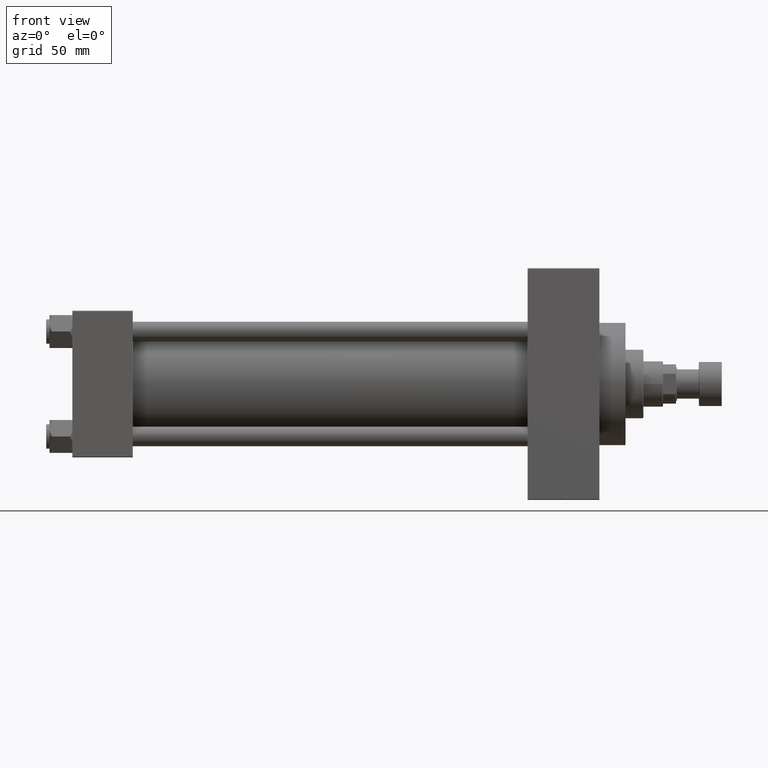
[diagram: clean part render]
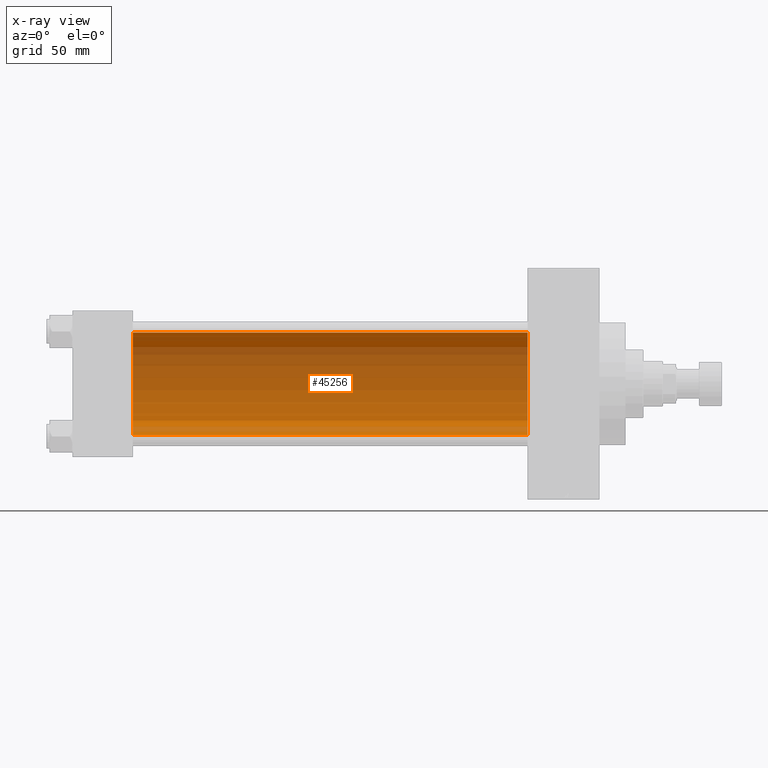
[diagram: x-ray — body ghosted, one internal face saturated and labeled with its STEP entity id]
A machine part, front view, then the same camera in x-ray: the body is ghosted and one INTERNAL B-rep face — a face not visible from any outside direction — is saturated and labeled: STEP entity #45256.
In plain terms, the highlighted cylindrical surface (partial cylindrical patch) has radius 31.5 mm, axis along (-1, -0, -0).
Its self-contained STEP definition (entity closure, byte-faithful):
#223 = ORIENTED_EDGE ( 'NONE', *, *, #43211, .F. ) ;
#313 = VECTOR ( 'NONE', #17520, 1000.000000000000000 ) ;
#2529 = DIRECTION ( 'NONE',  ( 1.000000000000000000, 0.000000000000000000, 0.000000000000000000 ) ) ;
#3727 = ORIENTED_EDGE ( 'NONE', *, *, #17386, .F. ) ;
#4605 = CIRCLE ( 'NONE', #29481, 31.50000000000000000 ) ;
#4612 = DIRECTION ( 'NONE',  ( 0.000000000000000000, 0.000000000000000000, -1.000000000000000000 ) ) ;
#6145 = DIRECTION ( 'NONE',  ( -1.000000000000000000, -0.000000000000000000, -0.000000000000000000 ) ) ;
#9125 = CYLINDRICAL_SURFACE ( 'NONE', #12358, 31.50000000000000000 ) ;
#9978 = CARTESIAN_POINT ( 'NONE',  ( 278.9999999999999432, 1.255552203348951850E-15, -31.50000000000000000 ) ) ;
#12358 = AXIS2_PLACEMENT_3D ( 'NONE', #21171, #36535, #44338 ) ;
#13759 = LINE ( 'NONE', #28629, #313 ) ;
#15165 = CARTESIAN_POINT ( 'NONE',  ( 37.00000000000000000, 1.255552203348951850E-15, -31.50000000000000000 ) ) ;
#15628 = EDGE_CURVE ( 'NONE', #17822, #39774, #27033, .T. ) ;
#17009 = ORIENTED_EDGE ( 'NONE', *, *, #15628, .T. ) ;
#17386 = EDGE_CURVE ( 'NONE', #21214, #35233, #4605, .T. ) ;
#17520 = DIRECTION ( 'NONE',  ( -1.000000000000000000, -0.000000000000000000, -0.000000000000000000 ) ) ;
#17822 = VERTEX_POINT ( 'NONE', #9978 ) ;
#18141 = CARTESIAN_POINT ( 'NONE',  ( 278.9999999999999432, -2.602085213965210642E-15, 31.50000000000000000 ) ) ;
#21097 = VECTOR ( 'NONE', #6145, 1000.000000000000000 ) ;
#21171 = CARTESIAN_POINT ( 'NONE',  ( 278.9999999999999432, -2.602085213965210642E-15, 0.000000000000000000 ) ) ;
#21214 = VERTEX_POINT ( 'NONE', #15165 ) ;
#22411 = CARTESIAN_POINT ( 'NONE',  ( 278.9999999999999432, -2.602085213965210642E-15, 0.000000000000000000 ) ) ;
#23722 = CARTESIAN_POINT ( 'NONE',  ( 37.00000000000000000, -2.602085213965210642E-15, 0.000000000000000000 ) ) ;
#27033 = CIRCLE ( 'NONE', #47139, 31.50000000000000000 ) ;
#28629 = CARTESIAN_POINT ( 'NONE',  ( 278.9999999999999432, -2.602085213965210642E-15, 31.50000000000000000 ) ) ;
#29481 = AXIS2_PLACEMENT_3D ( 'NONE', #23722, #39087, #4612 ) ;
#32523 = CARTESIAN_POINT ( 'NONE',  ( 37.00000000000000000, -2.602085213965210642E-15, 31.50000000000000000 ) ) ;
#33557 = ORIENTED_EDGE ( 'NONE', *, *, #44670, .T. ) ;
#35233 = VERTEX_POINT ( 'NONE', #32523 ) ;
#35792 = FACE_OUTER_BOUND ( 'NONE', #40869, .T. ) ;
#36340 = CARTESIAN_POINT ( 'NONE',  ( 278.9999999999999432, 1.255552203348951850E-15, -31.50000000000000000 ) ) ;
#36535 = DIRECTION ( 'NONE',  ( -1.000000000000000000, -0.000000000000000000, -0.000000000000000000 ) ) ;
#39087 = DIRECTION ( 'NONE',  ( 1.000000000000000000, 0.000000000000000000, 0.000000000000000000 ) ) ;
#39774 = VERTEX_POINT ( 'NONE', #18141 ) ;
#40128 = LINE ( 'NONE', #36340, #21097 ) ;
#40869 = EDGE_LOOP ( 'NONE', ( #223, #17009, #33557, #3727 ) ) ;
#42786 = DIRECTION ( 'NONE',  ( 0.000000000000000000, 0.000000000000000000, -1.000000000000000000 ) ) ;
#43211 = EDGE_CURVE ( 'NONE', #17822, #21214, #40128, .T. ) ;
#44338 = DIRECTION ( 'NONE',  ( 0.000000000000000000, 0.000000000000000000, 1.000000000000000000 ) ) ;
#44670 = EDGE_CURVE ( 'NONE', #39774, #35233, #13759, .T. ) ;
#45256 = ADVANCED_FACE ( 'NONE', ( #35792 ), #9125, .F. ) ;
#47139 = AXIS2_PLACEMENT_3D ( 'NONE', #22411, #2529, #42786 ) ;